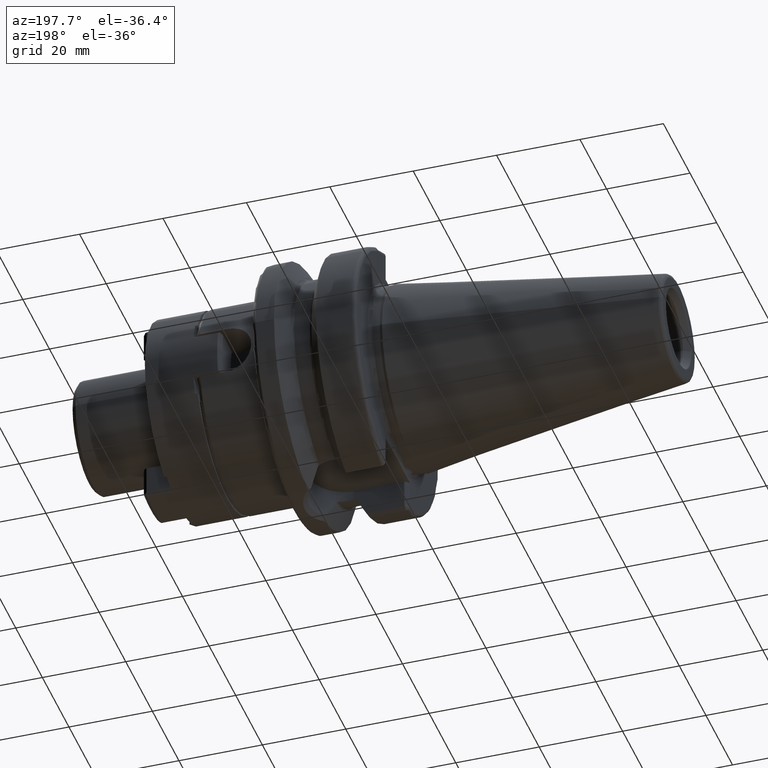
[diagram: clean part render]
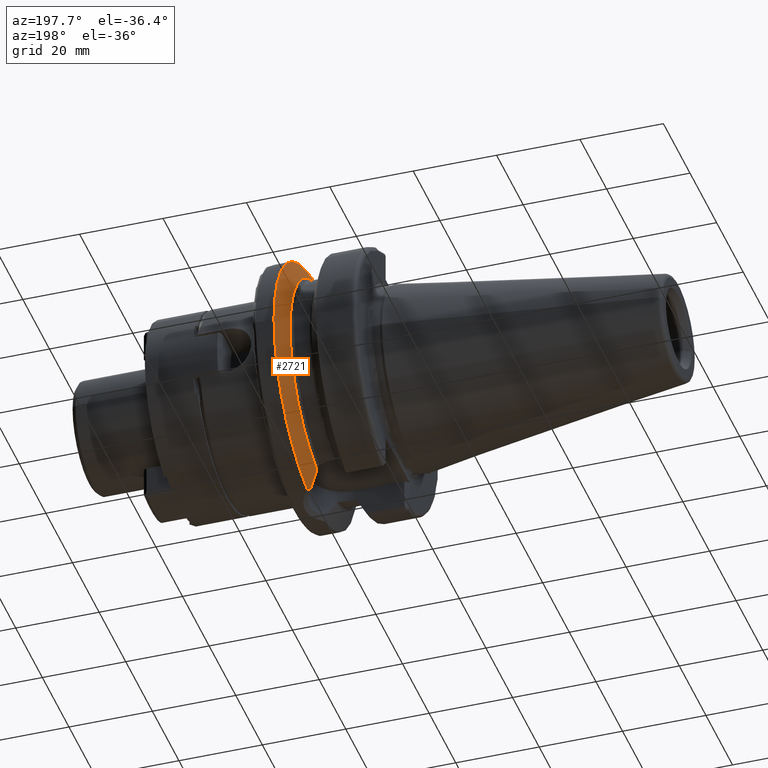
[diagram: same view with one face highlighted and labeled with its STEP entity id]
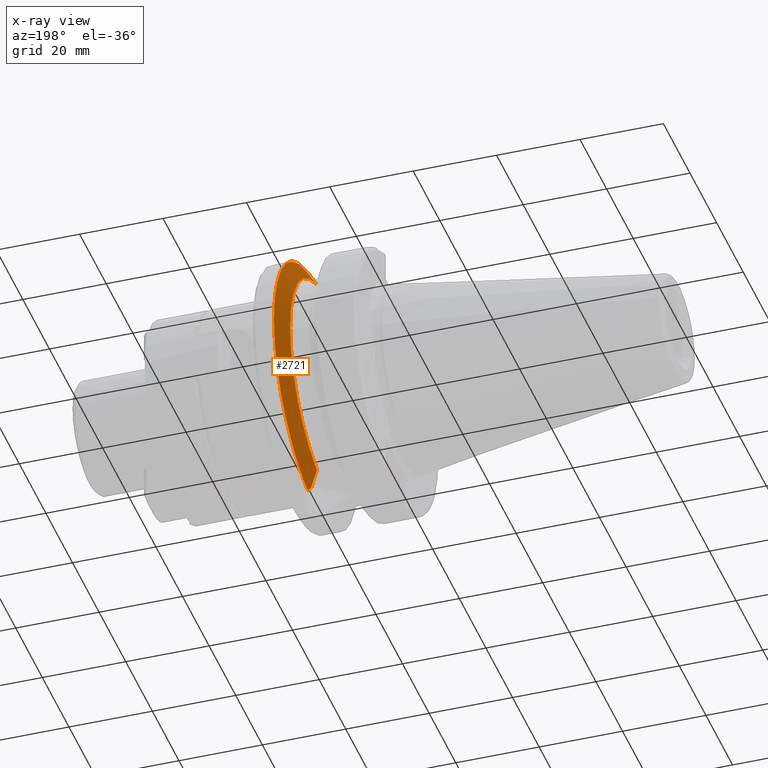
[diagram: x-ray of the same camera — body ghosted, the highlighted face saturated]
A machine part, auxiliary view. The second image highlights one B-rep face of the part: STEP entity #2721.
The next image is the same camera in x-ray: the body ghosted, the highlighted face saturated — about 0% of this face is hidden behind the body in this view.
In plain terms, the highlighted conical surface has half-angle 60 deg.
Its self-contained STEP definition (entity closure, byte-faithful):
#264=CARTESIAN_POINT('',(2.162727746897E1,0.E0,0.E0));
#265=DIRECTION('',(1.E0,0.E0,0.E0));
#266=DIRECTION('',(0.E0,2.025221356988E-1,-9.792776851088E-1));
#267=AXIS2_PLACEMENT_3D('',#264,#265,#266);
#413=CARTESIAN_POINT('',(1.91375E1,7.047603759435E0,-2.624530807186E1));
#414=CARTESIAN_POINT('',(1.926924659829E1,6.973155642658E0,-2.650157525064E1));
#415=CARTESIAN_POINT('',(1.953215093318E1,6.814880472402E0,-2.701339248784E1));
#416=CARTESIAN_POINT('',(1.992520758926E1,6.546145713789E0,-2.777975883833E1));
#417=CARTESIAN_POINT('',(2.031299763175E1,6.245544639533E0,-2.853691128968E1));
#418=CARTESIAN_POINT('',(2.069290284024E1,5.911695129812E0,-2.927960564408E1));
#419=CARTESIAN_POINT('',(2.093808029853E1,5.667101824111E0,-2.975945931955E1));
#420=CARTESIAN_POINT('',(2.105861623912E1,5.538622599637E0,-2.999548645237E1));
#488=CARTESIAN_POINT('',(2.097101805574E1,5.630538071564E0,2.982397761288E1));
#489=CARTESIAN_POINT('',(2.082604881782E1,5.780282855198E0,2.954017722398E1));
#490=CARTESIAN_POINT('',(2.053095055184E1,6.062081832034E0,2.896282820239E1));
#491=CARTESIAN_POINT('',(2.007321533351E1,6.438417817754E0,2.806855111877E1));
#492=CARTESIAN_POINT('',(1.960693883943E1,6.768577999667E0,2.715904469241E1));
#493=CARTESIAN_POINT('',(1.929432982957E1,6.958981467721E0,2.655036595187E1));
#494=CARTESIAN_POINT('',(1.91375E1,7.047603759435E0,2.624530807186E1));
#763=CARTESIAN_POINT('',(1.91375E1,0.E0,0.E0));
#764=DIRECTION('',(-1.E0,0.E0,0.E0));
#765=DIRECTION('',(0.E0,2.593406914876E-1,9.657859005694E-1));
#766=AXIS2_PLACEMENT_3D('',#763,#764,#765);
#780=CARTESIAN_POINT('',(2.105861623912E1,5.538622599637E0,-2.999548645237E1));
#781=CARTESIAN_POINT('',(2.111989614702E1,5.630136295378E0,-3.008652275541E1));
#782=CARTESIAN_POINT('',(2.124372313828E1,5.814239626407E0,-3.027008886976E1));
#783=CARTESIAN_POINT('',(2.143328453670E1,6.093672457464E0,-3.054994203428E1));
#784=CARTESIAN_POINT('',(2.156218936675E1,6.282134222929E0,-3.073948617248E1));
#785=CARTESIAN_POINT('',(2.162727746897E1,6.376915747817E0,-3.083500610986E1));
#787=CARTESIAN_POINT('',(2.162727746897E1,0.E0,0.E0));
#788=DIRECTION('',(1.E0,0.E0,0.E0));
#789=DIRECTION('',(0.E0,1.E0,0.E0));
#790=AXIS2_PLACEMENT_3D('',#787,#788,#789);
#1234=CARTESIAN_POINT('',(2.162727746897E1,6.599266458023E0,3.078818504664E1));
#1235=CARTESIAN_POINT('',(2.155180167283E1,6.489456770420E0,3.067802487357E1));
#1236=CARTESIAN_POINT('',(2.140255803858E1,6.271303447789E0,3.045972360003E1));
#1237=CARTESIAN_POINT('',(2.118379105962E1,5.948395649424E0,3.013829699472E1));
#1238=CARTESIAN_POINT('',(2.104137401503E1,5.736018183883E0,2.992807656128E1));
#1239=CARTESIAN_POINT('',(2.097101805574E1,5.630538071564E0,2.982397761288E1));
#1494=CARTESIAN_POINT('',(1.91375E1,7.047603759435E0,2.624530807186E1));
#1495=CARTESIAN_POINT('',(1.91375E1,7.047603759435E0,-2.624530807186E1));
#1496=VERTEX_POINT('',#1494);
#1497=VERTEX_POINT('',#1495);
#1510=CARTESIAN_POINT('',(2.162727746897E1,3.14875E1,0.E0));
#1511=CARTESIAN_POINT('',(2.162727746897E1,6.599266458023E0,3.078818504664E1));
#1512=VERTEX_POINT('',#1510);
#1513=VERTEX_POINT('',#1511);
#1524=CARTESIAN_POINT('',(2.162727746897E1,6.376915747817E0,-3.083500610986E1));
#1525=VERTEX_POINT('',#1524);
#1615=VERTEX_POINT('',#488);
#1623=VERTEX_POINT('',#420);
#2704=CARTESIAN_POINT('',(2.038238873448E1,0.E0,0.E0));
#2705=DIRECTION('',(1.E0,0.E0,0.E0));
#2706=DIRECTION('',(0.E0,-1.E0,0.E0));
#2707=AXIS2_PLACEMENT_3D('',#2704,#2705,#2706);
#2708=CONICAL_SURFACE('',#2707,2.933128946210E1,6.E1);
#2709=ORIENTED_EDGE('',*,*,#2246,.T.);
#2710=ORIENTED_EDGE('',*,*,#2221,.T.);
#2712=ORIENTED_EDGE('',*,*,#2711,.T.);
#2713=ORIENTED_EDGE('',*,*,#2102,.T.);
#2715=ORIENTED_EDGE('',*,*,#2714,.T.);
#2717=ORIENTED_EDGE('',*,*,#2716,.T.);
#2718=ORIENTED_EDGE('',*,*,#2309,.T.);
#2719=EDGE_LOOP('',(#2709,#2710,#2712,#2713,#2715,#2717,#2718));
#2720=FACE_OUTER_BOUND('',#2719,.F.);
#2721=ADVANCED_FACE('',(#2720),#2708,.T.);
#268=CIRCLE('',#267,3.14875E1);
#421=B_SPLINE_CURVE_WITH_KNOTS('',3,(#413,#414,#415,#416,#417,#418,#419,#420),
.UNSPECIFIED.,.F.,.F.,(4,1,1,1,1,4),(0.E0,2.E-1,4.E-1,6.E-1,8.E-1,1.E0),
.UNSPECIFIED.);
#495=B_SPLINE_CURVE_WITH_KNOTS('',3,(#488,#489,#490,#491,#492,#493,#494),
.UNSPECIFIED.,.F.,.F.,(4,1,1,1,4),(0.E0,2.5E-1,5.E-1,7.5E-1,1.E0),
.UNSPECIFIED.);
#767=CIRCLE('',#766,2.717507892421E1);
#786=B_SPLINE_CURVE_WITH_KNOTS('',3,(#780,#781,#782,#783,#784,#785),
.UNSPECIFIED.,.F.,.F.,(4,1,1,4),(0.E0,3.333333333333E-1,6.666666666667E-1,1.E0),
.UNSPECIFIED.);
#791=CIRCLE('',#790,3.14875E1);
#1240=B_SPLINE_CURVE_WITH_KNOTS('',3,(#1234,#1235,#1236,#1237,#1238,#1239),
.UNSPECIFIED.,.F.,.F.,(4,1,1,4),(0.E0,3.333333333333E-1,6.666666666667E-1,1.E0),
.UNSPECIFIED.);
#2102=EDGE_CURVE('',#1525,#1512,#268,.T.);
#2221=EDGE_CURVE('',#1497,#1623,#421,.T.);
#2246=EDGE_CURVE('',#1496,#1497,#767,.T.);
#2309=EDGE_CURVE('',#1615,#1496,#495,.T.);
#2711=EDGE_CURVE('',#1623,#1525,#786,.T.);
#2714=EDGE_CURVE('',#1512,#1513,#791,.T.);
#2716=EDGE_CURVE('',#1513,#1615,#1240,.T.);